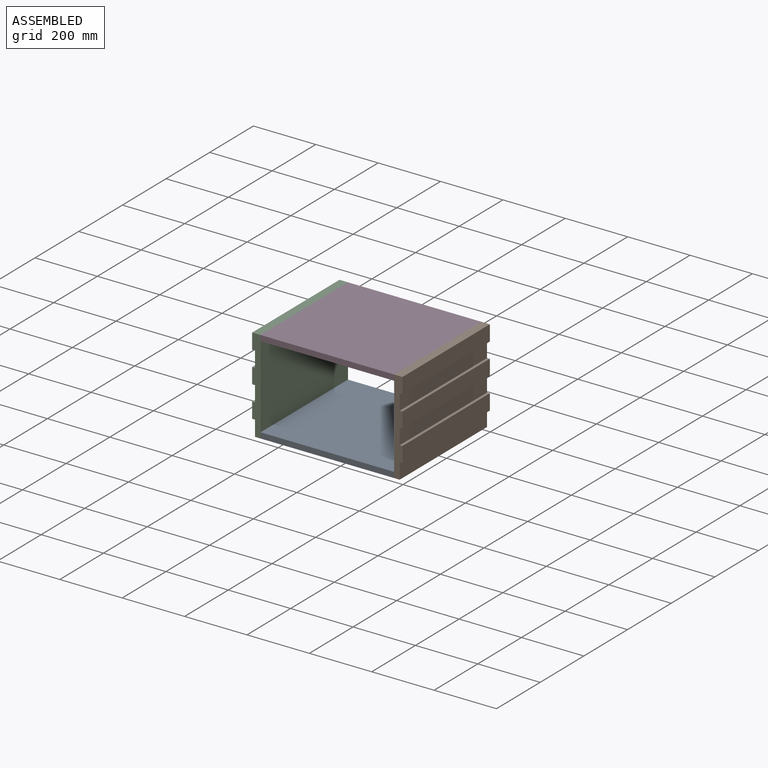
[diagram: assembled view]
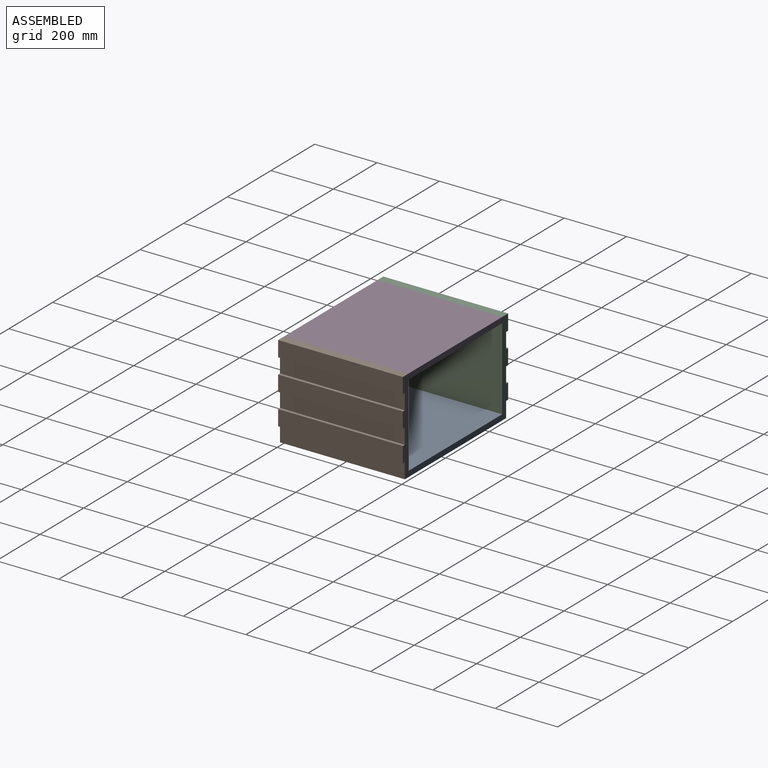
[diagram: assembled view, second angle]
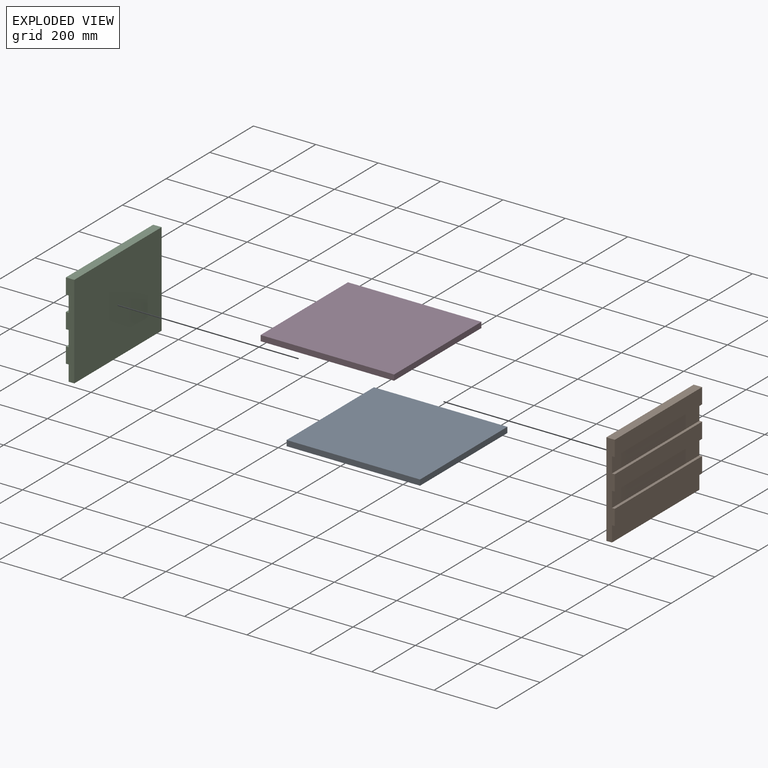
[diagram: exploded view]
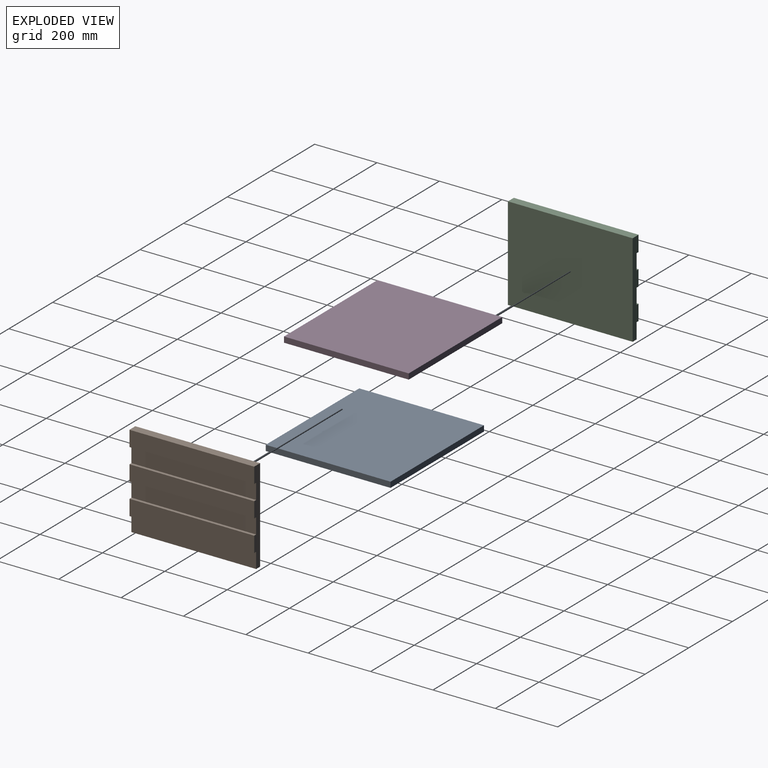
[diagram: exploded view, second angle]
ASSEMBLY  parts=4 mates=3
PART A: 6 faces, bbox 428x400x18 mm
  f0: plane 428x18mm, normal (0,1,0), area 7704mm2, adj f1,f3,f4,f5
  f1: plane 400x18mm, normal (-1,0,0), area 7200mm2, adj f0,f2,f4,f5
  f2: plane 428x18mm, normal (0,-1,0), area 7704mm2, adj f1,f3,f4,f5
  f3: plane 400x18mm, normal (1,0,0), area 7200mm2, adj f0,f2,f4,f5
  f4: plane 428x400mm, normal (0,0,1), area 171200mm2, adj f0,f1,f2,f3
  f5: plane 428x400mm, normal (0,0,-1), area 171200mm2, adj f0,f1,f2,f3
PART B: 16 faces, bbox 27x400x300 mm
  f0: plane 400x50mm, normal (1,0,0), area 20000mm2, adj f4,f6,f12,f14
  f1: plane 400x50mm, normal (1,0,0), area 20000mm2, adj f4,f6,f9,f11
  f2: plane 400x50mm, normal (1,0,0), area 20000mm2, adj f3,f4,f6,f8
  f3: plane 400x18mm, normal (0,0,1), area 7200mm2, adj f2,f4,f6,f7
  f4: plane 300x27mm, normal (0,-1,0), area 6750mm2, adj f0,f1,f2,f3,f5,f7,f8,f9
  f5: plane 400x27mm, normal (0,0,-1), area 10800mm2, adj f4,f6,f7,f15
  f6: plane 300x27mm, normal (0,1,0), area 6750mm2, adj f0,f1,f2,f3,f5,f7,f8,f9
  f7: plane 400x300mm, normal (-1,0,0), area 120000mm2, adj f3,f4,f5,f6
  f8: plane 400x9mm, normal (0,0,1), area 3600mm2, adj f2,f4,f6,f10
  f9: plane 400x9mm, normal (0,0,-1), area 3600mm2, adj f1,f4,f6,f10
  f10: plane 400x50mm, normal (1,0,0), area 20000mm2, adj f4,f6,f8,f9
  f11: plane 400x9mm, normal (0,0,1), area 3600mm2, adj f1,f4,f6,f13
  f12: plane 400x9mm, normal (0,0,-1), area 3600mm2, adj f0,f4,f6,f13
  f13: plane 400x50mm, normal (1,0,0), area 20000mm2, adj f4,f6,f11,f12
  f14: plane 400x9mm, normal (0,0,1), area 3600mm2, adj f0,f4,f6,f15
  f15: plane 400x50mm, normal (1,0,0), area 20000mm2, adj f4,f5,f6,f14
PART C: same geometry as B
PART D: same geometry as A
PLACE A rot(axis=(1,0,0),180deg) t=(-1443.55,68.6,32.62)mm
PLACE B rot(axis=(1,0,0),180deg) t=(-1229.55,231.19,168.17)mm
PLACE C rot(axis=(0,1,0),180deg) t=(-1657.55,171.85,168.17)mm
PLACE D rot(axis=(1,0,0),180deg) t=(-1443.55,68.6,314.62)mm
MATE fastened C.f7 <-> D.f1  axis (1,0,0) through (-1657.55,201.52,305.62)mm
MATE fastened B.f7 <-> A.f3  axis (-1,0,0) through (-1229.55,201.52,23.62)mm
MATE fastened A.f1 <-> C.f7  axis (-1,0,0) through (-1657.55,201.52,23.62)mm
